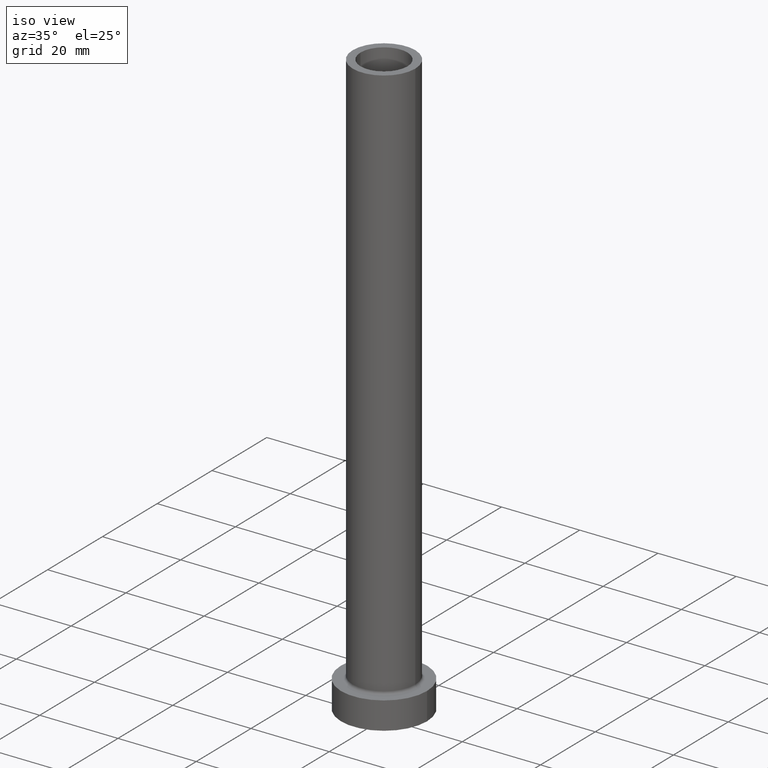
[diagram: clean part render]
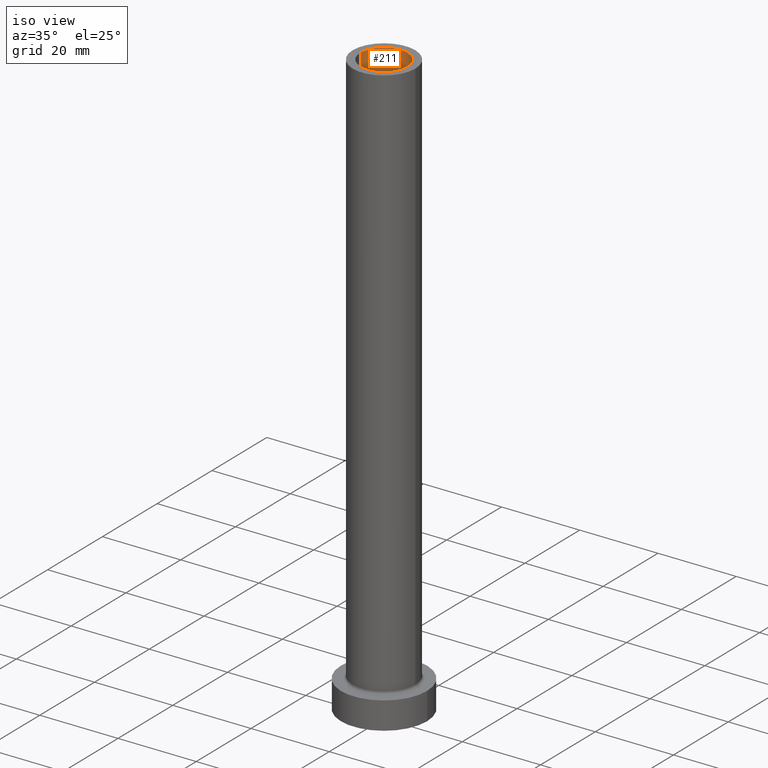
[diagram: same view with one face highlighted and labeled with its STEP entity id]
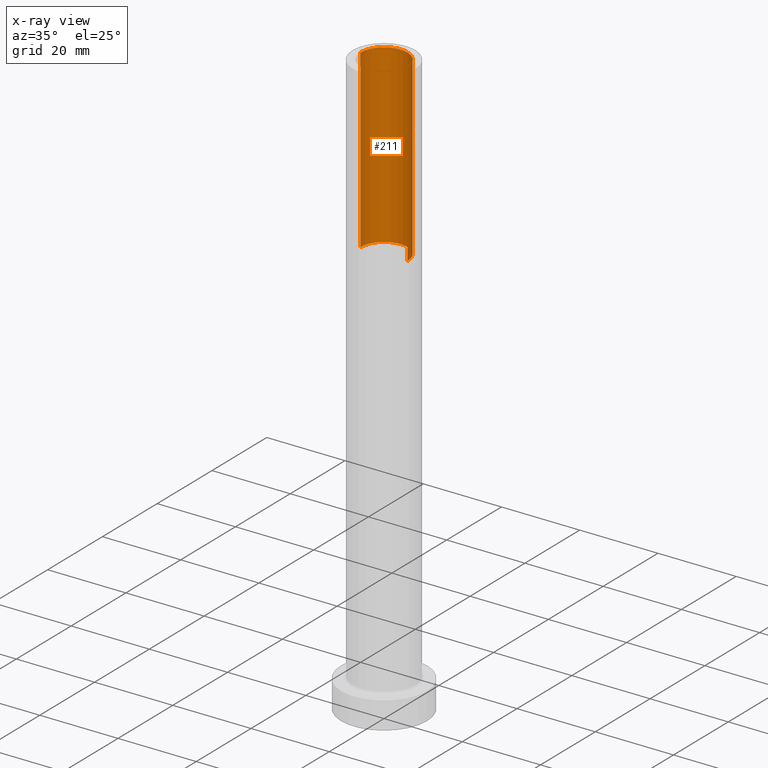
[diagram: x-ray of the same camera — body ghosted, the highlighted face saturated]
A machine part, iso view. The second image highlights one B-rep face of the part: STEP entity #211.
The next image is the same camera in x-ray: the body ghosted, the highlighted face saturated — about 0% of this face is hidden behind the body in this view.
In plain terms, the highlighted cylindrical surface (edge-blend (fillet) strip) has radius 6 mm, axis along (0, 0, -1).
Its self-contained STEP definition (entity closure, byte-faithful):
#1 = CARTESIAN_POINT ( 'NONE',  ( -6.000000000000000888, 0.000000000000000000, 150.0000000000000000 ) ) ;
#5 = CARTESIAN_POINT ( 'NONE',  ( -6.000000000000000888, 0.000000000000000000, 105.0000000000000000 ) ) ;
#22 = CIRCLE ( 'NONE', #182, 6.000000000000000888 ) ;
#53 = VERTEX_POINT ( 'NONE', #115 ) ;
#54 = CARTESIAN_POINT ( 'NONE',  ( 6.000000000000000888, 7.347880794884119736E-16, 150.0000000000000000 ) ) ;
#59 = FACE_OUTER_BOUND ( 'NONE', #151, .T. ) ;
#71 = CIRCLE ( 'NONE', #203, 6.000000000000000888 ) ;
#72 = VECTOR ( 'NONE', #435, 1000.000000000000000 ) ;
#80 = EDGE_CURVE ( 'NONE', #230, #53, #22, .T. ) ;
#95 = DIRECTION ( 'NONE',  ( 1.000000000000000000, 0.000000000000000000, 0.000000000000000000 ) ) ;
#100 = CARTESIAN_POINT ( 'NONE',  ( 6.000000000000000888, 7.347880794884119736E-16, 150.0000000000000000 ) ) ;
#115 = CARTESIAN_POINT ( 'NONE',  ( -6.000000000000000888, 0.000000000000000000, 150.0000000000000000 ) ) ;
#120 = ORIENTED_EDGE ( 'NONE', *, *, #122, .F. ) ;
#122 = EDGE_CURVE ( 'NONE', #230, #401, #210, .T. ) ;
#128 = DIRECTION ( 'NONE',  ( 0.000000000000000000, 0.000000000000000000, -1.000000000000000000 ) ) ;
#133 = AXIS2_PLACEMENT_3D ( 'NONE', #347, #314, #455 ) ;
#151 = EDGE_LOOP ( 'NONE', ( #120, #196, #447, #317 ) ) ;
#182 = AXIS2_PLACEMENT_3D ( 'NONE', #365, #307, #267 ) ;
#188 = EDGE_CURVE ( 'NONE', #401, #275, #71, .T. ) ;
#196 = ORIENTED_EDGE ( 'NONE', *, *, #80, .T. ) ;
#203 = AXIS2_PLACEMENT_3D ( 'NONE', #204, #417, #95 ) ;
#204 = CARTESIAN_POINT ( 'NONE',  ( 0.000000000000000000, 0.000000000000000000, 105.0000000000000000 ) ) ;
#206 = CYLINDRICAL_SURFACE ( 'NONE', #133, 6.000000000000000888 ) ;
#210 = LINE ( 'NONE', #54, #305 ) ;
#211 = ADVANCED_FACE ( 'NONE', ( #59 ), #206, .F. ) ;
#230 = VERTEX_POINT ( 'NONE', #100 ) ;
#267 = DIRECTION ( 'NONE',  ( 1.000000000000000000, 0.000000000000000000, 0.000000000000000000 ) ) ;
#275 = VERTEX_POINT ( 'NONE', #5 ) ;
#305 = VECTOR ( 'NONE', #128, 1000.000000000000000 ) ;
#307 = DIRECTION ( 'NONE',  ( 0.000000000000000000, 0.000000000000000000, 1.000000000000000000 ) ) ;
#314 = DIRECTION ( 'NONE',  ( 0.000000000000000000, 0.000000000000000000, -1.000000000000000000 ) ) ;
#317 = ORIENTED_EDGE ( 'NONE', *, *, #188, .F. ) ;
#323 = LINE ( 'NONE', #1, #72 ) ;
#347 = CARTESIAN_POINT ( 'NONE',  ( 0.000000000000000000, 0.000000000000000000, 150.0000000000000000 ) ) ;
#363 = CARTESIAN_POINT ( 'NONE',  ( 6.000000000000000888, 7.347880794884119736E-16, 105.0000000000000000 ) ) ;
#365 = CARTESIAN_POINT ( 'NONE',  ( 0.000000000000000000, 0.000000000000000000, 150.0000000000000000 ) ) ;
#370 = EDGE_CURVE ( 'NONE', #53, #275, #323, .T. ) ;
#401 = VERTEX_POINT ( 'NONE', #363 ) ;
#417 = DIRECTION ( 'NONE',  ( 0.000000000000000000, 0.000000000000000000, 1.000000000000000000 ) ) ;
#435 = DIRECTION ( 'NONE',  ( 0.000000000000000000, 0.000000000000000000, -1.000000000000000000 ) ) ;
#447 = ORIENTED_EDGE ( 'NONE', *, *, #370, .T. ) ;
#455 = DIRECTION ( 'NONE',  ( -1.000000000000000000, 0.000000000000000000, 0.000000000000000000 ) ) ;